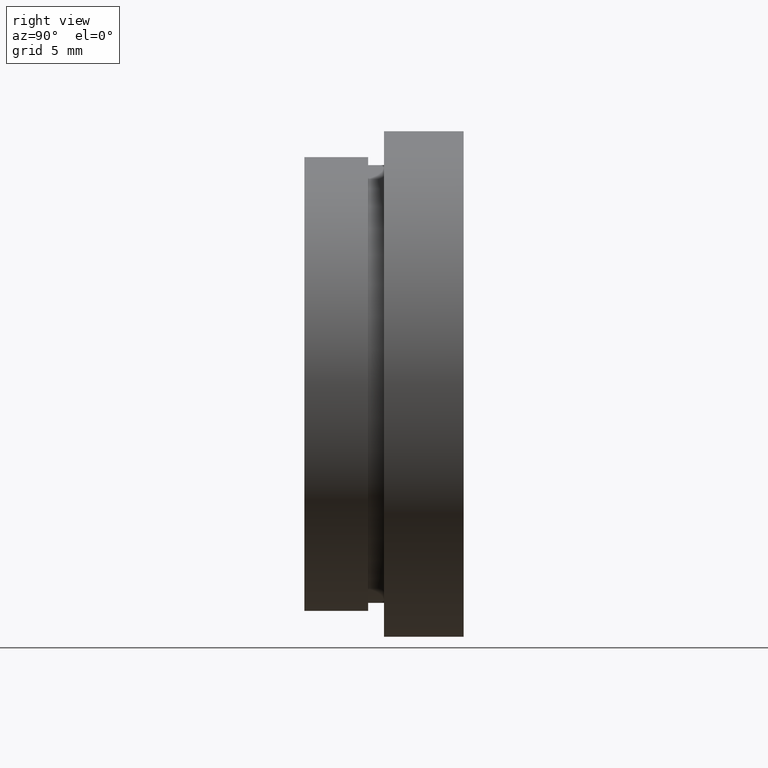
[diagram: clean part render]
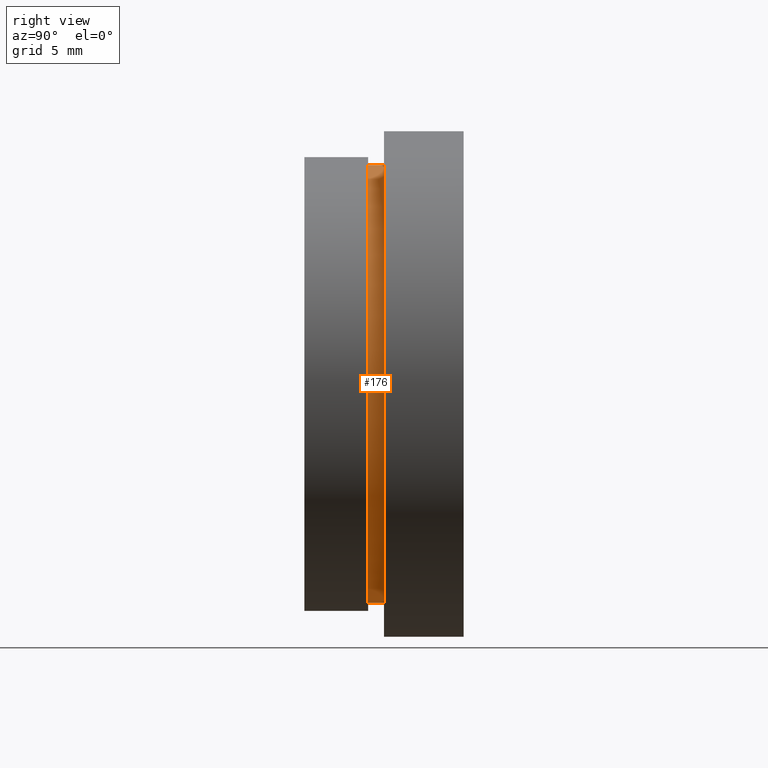
[diagram: same view with one face highlighted and labeled with its STEP entity id]
A machine part, right view. The second image highlights one B-rep face of the part: STEP entity #176.
In plain terms, the highlighted cylindrical surface (partial cylindrical patch) has radius 13.75 mm, axis along (-0, 1, -0).
Its self-contained STEP definition (entity closure, byte-faithful):
#11 = LINE ( 'NONE', #107, #154 ) ;
#68 = CARTESIAN_POINT ( 'NONE',  ( 1.683889348827610700E-015, 4.000000000000000000, -13.75000000000000000 ) ) ;
#78 = EDGE_CURVE ( 'NONE', #196, #332, #353, .T. ) ;
#94 = DIRECTION ( 'NONE',  ( -0.0000000000000000000, 1.000000000000000000, -0.0000000000000000000 ) ) ;
#106 = EDGE_LOOP ( 'NONE', ( #254, #493, #255, #308 ) ) ;
#107 = CARTESIAN_POINT ( 'NONE',  ( 1.683889348827610700E-015, 17.41929831819392000, -13.75000000000000000 ) ) ;
#120 = CYLINDRICAL_SURFACE ( 'NONE', #198, 13.75000000000000000 ) ;
#154 = VECTOR ( 'NONE', #94, 1000.000000000000000 ) ;
#170 = FACE_OUTER_BOUND ( 'NONE', #106, .T. ) ;
#176 = ADVANCED_FACE ( 'NONE', ( #170 ), #120, .T. ) ;
#196 = VERTEX_POINT ( 'NONE', #383 ) ;
#198 = AXIS2_PLACEMENT_3D ( 'NONE', #363, #221, #442 ) ;
#203 = EDGE_CURVE ( 'NONE', #332, #468, #11, .T. ) ;
#221 = DIRECTION ( 'NONE',  ( -0.0000000000000000000, 1.000000000000000000, -0.0000000000000000000 ) ) ;
#226 = VERTEX_POINT ( 'NONE', #342 ) ;
#228 = AXIS2_PLACEMENT_3D ( 'NONE', #273, #312, #561 ) ;
#231 = EDGE_CURVE ( 'NONE', #226, #468, #614, .T. ) ;
#254 = ORIENTED_EDGE ( 'NONE', *, *, #78, .T. ) ;
#255 = ORIENTED_EDGE ( 'NONE', *, *, #231, .F. ) ;
#273 = CARTESIAN_POINT ( 'NONE',  ( 0.0000000000000000000, 4.000000000000000000, 0.0000000000000000000 ) ) ;
#288 = CARTESIAN_POINT ( 'NONE',  ( 1.683889348827610700E-015, 5.000000000000000900, -13.75000000000000000 ) ) ;
#308 = ORIENTED_EDGE ( 'NONE', *, *, #490, .F. ) ;
#312 = DIRECTION ( 'NONE',  ( -0.0000000000000000000, 1.000000000000000000, -0.0000000000000000000 ) ) ;
#318 = CARTESIAN_POINT ( 'NONE',  ( 0.0000000000000000000, 17.41929831819392000, 13.75000000000000000 ) ) ;
#319 = DIRECTION ( 'NONE',  ( -0.0000000000000000000, 1.000000000000000000, -0.0000000000000000000 ) ) ;
#332 = VERTEX_POINT ( 'NONE', #68 ) ;
#342 = CARTESIAN_POINT ( 'NONE',  ( 0.0000000000000000000, 5.000000000000000900, 13.75000000000000000 ) ) ;
#353 = CIRCLE ( 'NONE', #228, 13.75000000000000000 ) ;
#363 = CARTESIAN_POINT ( 'NONE',  ( 0.0000000000000000000, 17.41929831819392000, 0.0000000000000000000 ) ) ;
#383 = CARTESIAN_POINT ( 'NONE',  ( 0.0000000000000000000, 4.000000000000000000, 13.75000000000000000 ) ) ;
#439 = AXIS2_PLACEMENT_3D ( 'NONE', #555, #547, #599 ) ;
#441 = LINE ( 'NONE', #318, #583 ) ;
#442 = DIRECTION ( 'NONE',  ( 0.0000000000000000000, 0.0000000000000000000, 1.000000000000000000 ) ) ;
#468 = VERTEX_POINT ( 'NONE', #288 ) ;
#490 = EDGE_CURVE ( 'NONE', #196, #226, #441, .T. ) ;
#493 = ORIENTED_EDGE ( 'NONE', *, *, #203, .T. ) ;
#547 = DIRECTION ( 'NONE',  ( -0.0000000000000000000, 1.000000000000000000, -0.0000000000000000000 ) ) ;
#555 = CARTESIAN_POINT ( 'NONE',  ( 0.0000000000000000000, 5.000000000000000900, 0.0000000000000000000 ) ) ;
#561 = DIRECTION ( 'NONE',  ( 0.0000000000000000000, 0.0000000000000000000, 1.000000000000000000 ) ) ;
#583 = VECTOR ( 'NONE', #319, 1000.000000000000000 ) ;
#599 = DIRECTION ( 'NONE',  ( 0.0000000000000000000, 0.0000000000000000000, 1.000000000000000000 ) ) ;
#614 = CIRCLE ( 'NONE', #439, 13.75000000000000000 ) ;